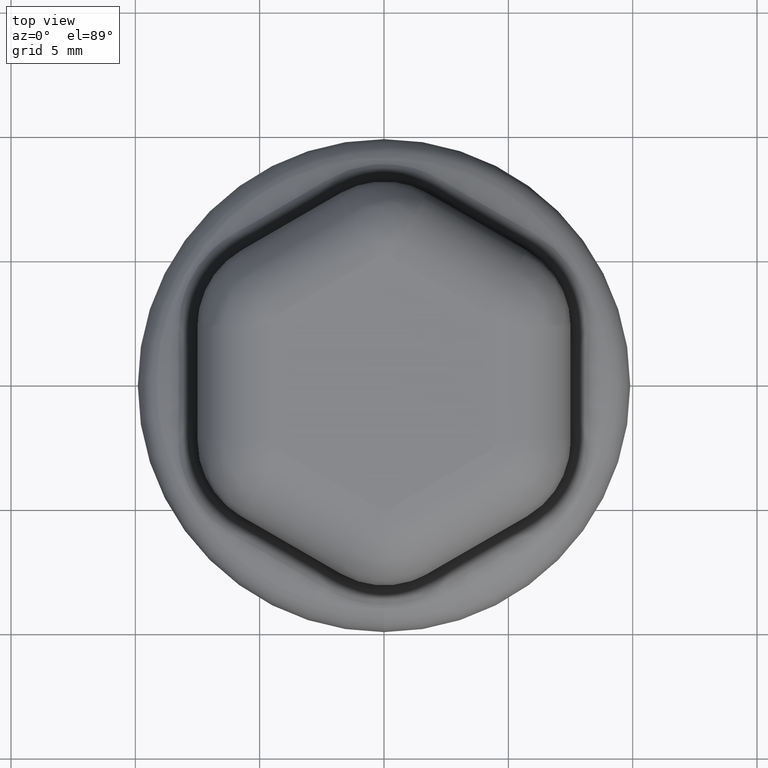
[diagram: clean part render]
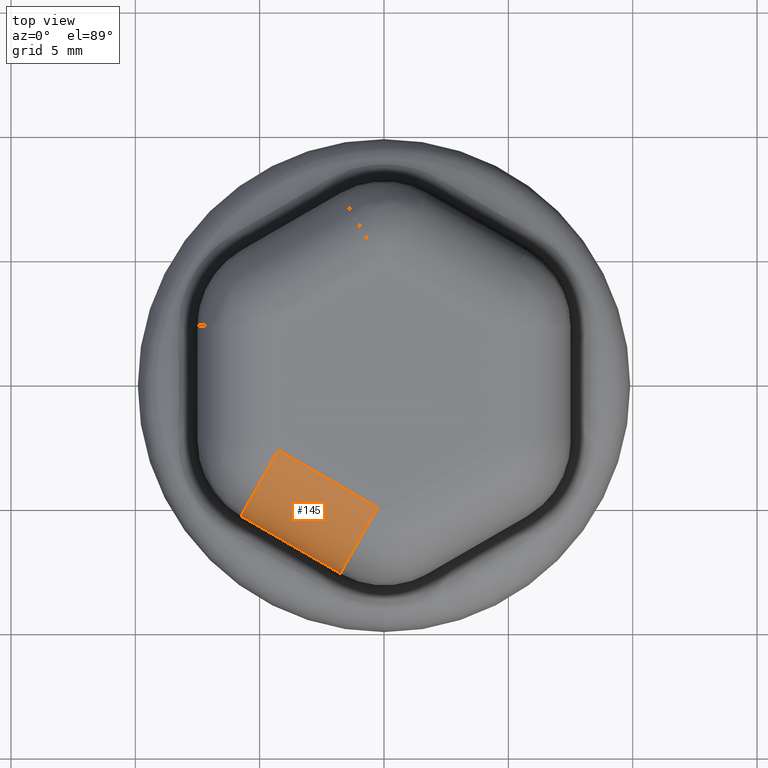
[diagram: same view with one face highlighted and labeled with its STEP entity id]
A machine part, top view. The second image highlights one B-rep face of the part: STEP entity #145.
In plain terms, the highlighted cylindrical surface (partial cylindrical patch) has radius 3 mm, axis along (0.866, -0.5, 0).
Its self-contained STEP definition (entity closure, byte-faithful):
#145 = ADVANCED_FACE( '', ( #301 ), #302, .T. );
#301 = FACE_OUTER_BOUND( '', #2635, .T. );
#302 = CYLINDRICAL_SURFACE( '', #2636, 3.00000000000000 );
#2635 = EDGE_LOOP( '', ( #3184, #3185, #3186, #3187 ) );
#2636 = AXIS2_PLACEMENT_3D( '', #3188, #3189, #3190 );
#3184 = ORIENTED_EDGE( '', *, *, #3362, .F. );
#3185 = ORIENTED_EDGE( '', *, *, #3366, .T. );
#3186 = ORIENTED_EDGE( '', *, *, #3395, .F. );
#3187 = ORIENTED_EDGE( '', *, *, #3371, .T. );
#3188 = CARTESIAN_POINT( '', ( 1.50000000000000, -6.06217782649107, 6.00000000000000 ) );
#3189 = DIRECTION( '', ( 0.866025403784439, -0.500000000000000, 0.000000000000000 ) );
#3190 = DIRECTION( '', ( -0.500000000000000, -0.866025403784439, 0.000000000000000 ) );
#3362 = EDGE_CURVE( '', #3598, #3610, #3612, .F. );
#3366 = EDGE_CURVE( '', #3598, #3617, #3618, .T. );
#3371 = EDGE_CURVE( '', #3625, #3610, #3626, .T. );
#3395 = EDGE_CURVE( '', #3625, #3617, #3661, .T. );
#3598 = VERTEX_POINT( '', #5034 );
#3610 = VERTEX_POINT( '', #5068 );
#3612 = LINE( '', #5071, #5072 );
#3617 = VERTEX_POINT( '', #5109 );
#3618 = CIRCLE( '', #5110, 3.00000000000000 );
#3625 = VERTEX_POINT( '', #5117 );
#3626 = CIRCLE( '', #5118, 3.00000000000000 );
#3661 = LINE( '', #5160, #5161 );
#5034 = CARTESIAN_POINT( '', ( -1.75000000000000, -7.64989106676254, 6.00000000000000 ) );
#5068 = CARTESIAN_POINT( '', ( -5.74999999999999, -5.34048999000404, 6.00000000000000 ) );
#5071 = CARTESIAN_POINT( '', ( -7.50000000000000, -4.33012701892219, 6.00000000000000 ) );
#5072 = VECTOR( '', #5350, 1000.00000000000 );
#5109 = CARTESIAN_POINT( '', ( -0.250000000000002, -5.05181485540922, 9.00000000000000 ) );
#5110 = AXIS2_PLACEMENT_3D( '', #5353, #5354, #5355 );
#5117 = CARTESIAN_POINT( '', ( -4.25000000000000, -2.74241377865073, 9.00000000000000 ) );
#5118 = AXIS2_PLACEMENT_3D( '', #5368, #5369, #5370 );
#5160 = CARTESIAN_POINT( '', ( 1.50000000000000, -6.06217782649107, 9.00000000000000 ) );
#5161 = VECTOR( '', #5426, 1000.00000000000 );
#5350 = DIRECTION( '', ( 0.866025403784439, -0.500000000000000, 0.000000000000000 ) );
#5353 = CARTESIAN_POINT( '', ( -0.250000000000000, -5.05181485540922, 6.00000000000000 ) );
#5354 = DIRECTION( '', ( -0.866025403784439, 0.500000000000000, -4.32290351774110E-017 ) );
#5355 = DIRECTION( '', ( -0.500000000000000, -0.866025403784439, 0.000000000000000 ) );
#5368 = CARTESIAN_POINT( '', ( -4.25000000000000, -2.74241377865072, 6.00000000000000 ) );
#5369 = DIRECTION( '', ( 0.866025403784439, -0.500000000000000, 0.000000000000000 ) );
#5370 = DIRECTION( '', ( 0.500000000000000, 0.866025403784439, 0.000000000000000 ) );
#5426 = DIRECTION( '', ( 0.866025403784439, -0.500000000000000, 0.000000000000000 ) );